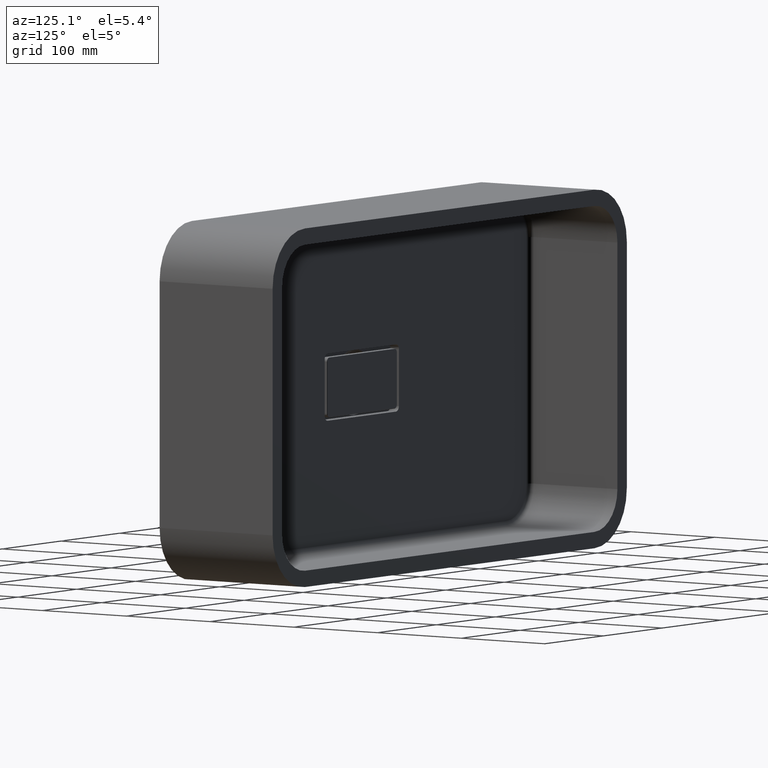
[diagram: clean part render]
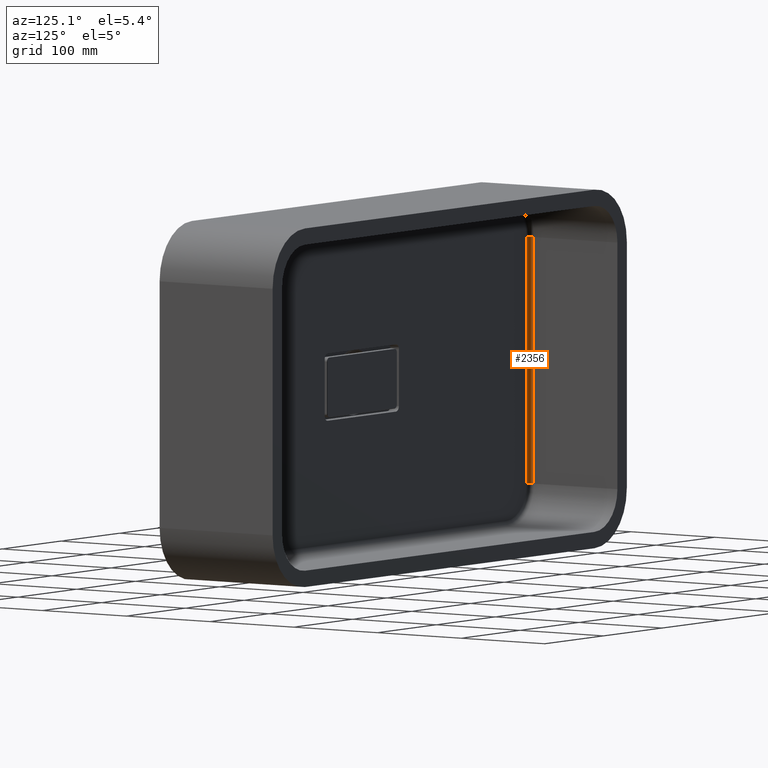
[diagram: same view with one face highlighted and labeled with its STEP entity id]
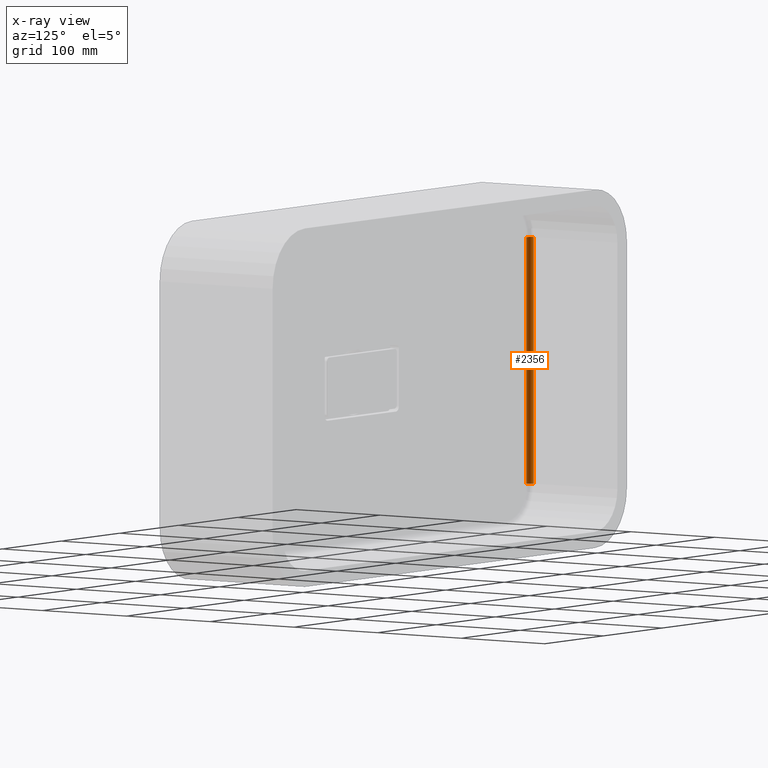
[diagram: x-ray of the same camera — body ghosted, the highlighted face saturated]
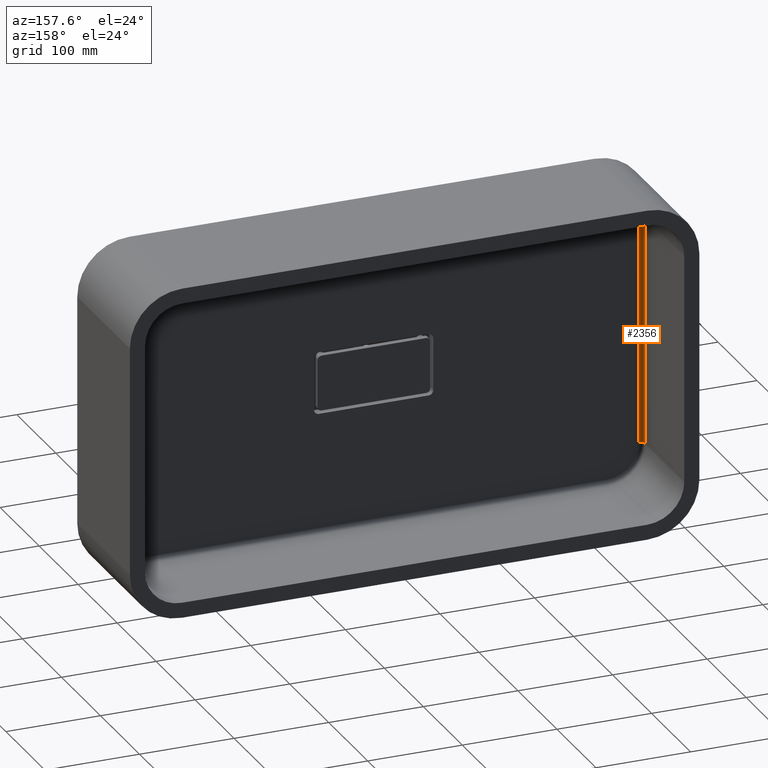
[diagram: same view with one face highlighted and labeled with its STEP entity id]
A machine part, auxiliary view. The second image highlights one B-rep face of the part: STEP entity #2356.
The next image is the same camera in x-ray: the body ghosted, the highlighted face saturated — about 0% of this face is hidden behind the body in this view.
A second angle (auxiliary view) of the same face is appended — the face is thin or edge-on in the first view.
In plain terms, the highlighted cylindrical surface (edge-blend (fillet) strip) has radius 5 mm, axis along (0, 0, 1).
Its self-contained STEP definition (entity closure, byte-faithful):
#370 = ORIENTED_EDGE ( 'NONE', *, *, #1568, .F. ) ;
#445 = CARTESIAN_POINT ( 'NONE',  ( -280.0000000000000600, 34.99999999999999300, -120.9999999999999000 ) ) ;
#458 = DIRECTION ( 'NONE',  ( 2.293849224432141900E-016, 0.0000000000000000000, 1.000000000000000000 ) ) ;
#506 = DIRECTION ( 'NONE',  ( 1.000000000000000000, 0.0000000000000000000, 0.0000000000000000000 ) ) ;
#507 = VERTEX_POINT ( 'NONE', #3405 ) ;
#599 = ORIENTED_EDGE ( 'NONE', *, *, #1902, .F. ) ;
#623 = CARTESIAN_POINT ( 'NONE',  ( -280.0000000000000600, 34.99999999999999300, -121.0000000000000300 ) ) ;
#636 = DIRECTION ( 'NONE',  ( 0.0000000000000000000, 0.0000000000000000000, 1.000000000000000000 ) ) ;
#676 = DIRECTION ( 'NONE',  ( 1.000000000000000000, 0.0000000000000000000, 0.0000000000000000000 ) ) ;
#835 = EDGE_CURVE ( 'NONE', #859, #2033, #3319, .T. ) ;
#859 = VERTEX_POINT ( 'NONE', #2756 ) ;
#993 = CYLINDRICAL_SURFACE ( 'NONE', #1998, 5.000000000000004400 ) ;
#1072 = FACE_OUTER_BOUND ( 'NONE', #2656, .T. ) ;
#1298 = CARTESIAN_POINT ( 'NONE',  ( -280.0000000000000600, 30.00000000000000000, -121.0000000000000300 ) ) ;
#1309 = VERTEX_POINT ( 'NONE', #1298 ) ;
#1427 = CARTESIAN_POINT ( 'NONE',  ( -280.0000000000000600, 30.00000000000000000, -120.9999999999999000 ) ) ;
#1568 = EDGE_CURVE ( 'NONE', #1309, #2033, #2209, .T. ) ;
#1590 = EDGE_CURVE ( 'NONE', #859, #507, #2123, .T. ) ;
#1611 = CIRCLE ( 'NONE', #3867, 5.000000000000004400 ) ;
#1902 = EDGE_CURVE ( 'NONE', #507, #1309, #1611, .T. ) ;
#1998 = AXIS2_PLACEMENT_3D ( 'NONE', #445, #458, #506 ) ;
#2033 = VERTEX_POINT ( 'NONE', #2152 ) ;
#2118 = VECTOR ( 'NONE', #3060, 1000.000000000000000 ) ;
#2123 = LINE ( 'NONE', #2972, #2118 ) ;
#2152 = CARTESIAN_POINT ( 'NONE',  ( -280.0000000000000000, 30.00000000000000000, 120.9999999999999600 ) ) ;
#2159 = VECTOR ( 'NONE', #2950, 1000.000000000000000 ) ;
#2209 = LINE ( 'NONE', #1427, #2159 ) ;
#2279 = CARTESIAN_POINT ( 'NONE',  ( -280.0000000000000000, 34.99999999999999300, 120.9999999999999600 ) ) ;
#2351 = DIRECTION ( 'NONE',  ( 0.0000000000000000000, 0.0000000000000000000, 1.000000000000000000 ) ) ;
#2356 = ADVANCED_FACE ( 'NONE', ( #1072 ), #993, .F. ) ;
#2394 = DIRECTION ( 'NONE',  ( 1.000000000000000000, 0.0000000000000000000, 0.0000000000000000000 ) ) ;
#2656 = EDGE_LOOP ( 'NONE', ( #3688, #370, #599, #3463 ) ) ;
#2756 = CARTESIAN_POINT ( 'NONE',  ( -285.0000000000000600, 34.99999999999999300, 120.9999999999999600 ) ) ;
#2950 = DIRECTION ( 'NONE',  ( 2.293849224432141900E-016, 0.0000000000000000000, 1.000000000000000000 ) ) ;
#2972 = CARTESIAN_POINT ( 'NONE',  ( -285.0000000000001100, 34.99999999999999300, -121.0000000000000300 ) ) ;
#3060 = DIRECTION ( 'NONE',  ( -2.293849224432141900E-016, -0.0000000000000000000, -1.000000000000000000 ) ) ;
#3319 = CIRCLE ( 'NONE', #3537, 5.000000000000004400 ) ;
#3405 = CARTESIAN_POINT ( 'NONE',  ( -285.0000000000001100, 34.99999999999999300, -121.0000000000000300 ) ) ;
#3463 = ORIENTED_EDGE ( 'NONE', *, *, #1590, .F. ) ;
#3537 = AXIS2_PLACEMENT_3D ( 'NONE', #2279, #2351, #2394 ) ;
#3688 = ORIENTED_EDGE ( 'NONE', *, *, #835, .T. ) ;
#3867 = AXIS2_PLACEMENT_3D ( 'NONE', #623, #636, #676 ) ;